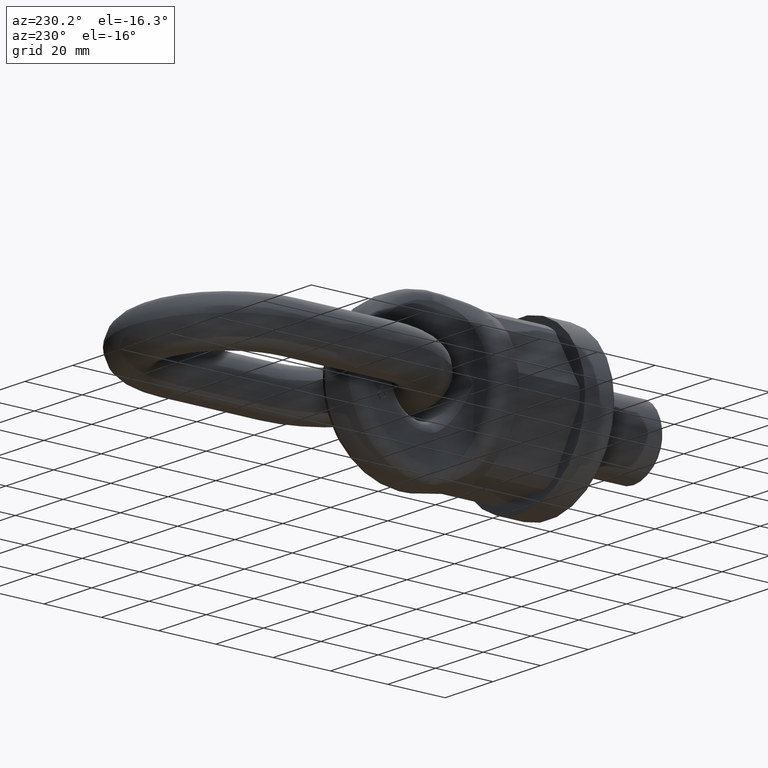
[diagram: clean part render]
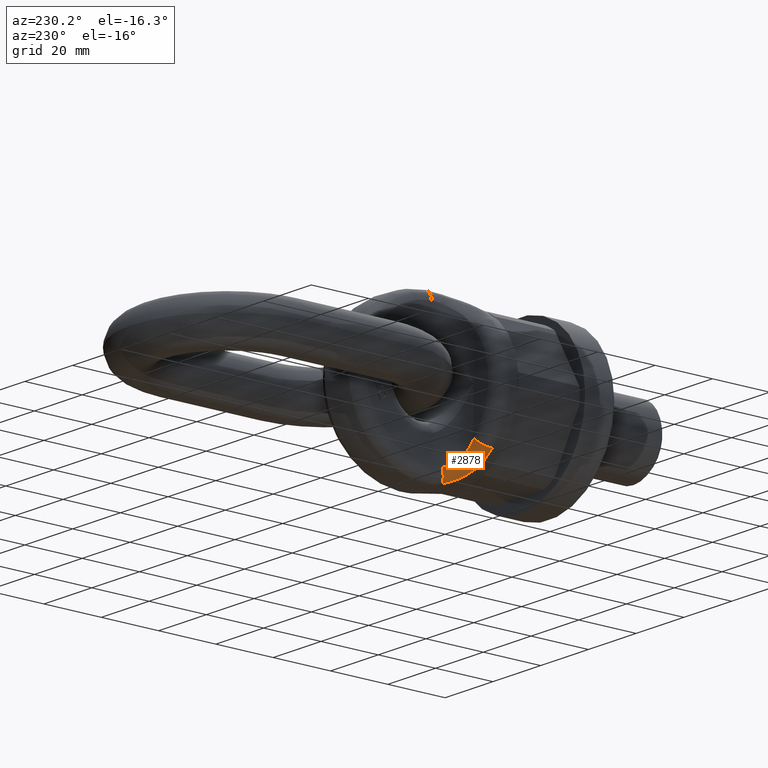
[diagram: same view with one face highlighted and labeled with its STEP entity id]
A machine part, auxiliary view. The second image highlights one B-rep face of the part: STEP entity #2878.
In plain terms, the highlighted face is a freeform B-spline surface patch.
Its self-contained STEP definition (entity closure, byte-faithful):
#219=(
BOUNDED_SURFACE()
B_SPLINE_SURFACE(3,2,((#9590,#9591,#9592),(#9593,#9594,#9595),(#9596,#9597,
#9598),(#9599,#9600,#9601),(#9602,#9603,#9604),(#9605,#9606,#9607)),
 .UNSPECIFIED.,.F.,.F.,.F.)
B_SPLINE_SURFACE_WITH_KNOTS((4,2,4),(3,3),(0.,0.5,1.),(0.,1.),
 .UNSPECIFIED.)
GEOMETRIC_REPRESENTATION_ITEM()
RATIONAL_B_SPLINE_SURFACE(((1.,0.753233426508289,1.),(1.,0.749856148031079,
1.),(1.,0.749778402047912,1.),(1.,0.718998809022,1.),(1.,0.688199605206974,
1.),(1.,0.644133810141845,1.)))
REPRESENTATION_ITEM('')
SURFACE()
);
#357=B_SPLINE_CURVE_WITH_KNOTS('',3,(#7016,#7017,#7018,#7019,#7020,#7021),
 .UNSPECIFIED.,.F.,.F.,(4,2,4),(0.,0.5,1.),.UNSPECIFIED.);
#542=B_SPLINE_CURVE_WITH_KNOTS('',3,(#8546,#8547,#8548,#8549,#8550,#8551),
 .UNSPECIFIED.,.F.,.F.,(4,2,4),(0.,0.5,1.),.UNSPECIFIED.);
#2014=FACE_OUTER_BOUND('',#3337,.T.);
#2878=ADVANCED_FACE('',(#2014),#219,.T.);
#3337=EDGE_LOOP('',(#4513,#4514,#4515,#4516));
#4513=ORIENTED_EDGE('',*,*,#5527,.T.);
#4514=ORIENTED_EDGE('',*,*,#5346,.F.);
#4515=ORIENTED_EDGE('',*,*,#5529,.F.);
#4516=ORIENTED_EDGE('',*,*,#5067,.F.);
#4654=VERTEX_POINT('',#7022);
#4655=VERTEX_POINT('',#7023);
#4839=VERTEX_POINT('',#8532);
#4840=VERTEX_POINT('',#8545);
#5067=EDGE_CURVE('',#4654,#4655,#357,.T.);
#5346=EDGE_CURVE('',#4840,#4839,#542,.T.);
#5527=EDGE_CURVE('',#4654,#4839,#5593,.T.);
#5529=EDGE_CURVE('',#4655,#4840,#5595,.T.);
#5593=CIRCLE('',#5792,3.75);
#5595=CIRCLE('',#5795,3.75);
#5792=AXIS2_PLACEMENT_3D('',#9574,#6535,#6536);
#5795=AXIS2_PLACEMENT_3D('',#9589,#6541,#6542);
#6535=DIRECTION('',(0.691825547381453,0.,-0.722064686846235));
#6536=DIRECTION('',(-0.722064686846235,0.,-0.691825547381454));
#6541=DIRECTION('',(0.374934514116953,0.894580537769602,-0.243207260516073));
#6542=DIRECTION('',(0.922272370507941,-0.386540650640606,1.85037170770859E-15));
#7016=CARTESIAN_POINT('',(-18.6682431880993,35.6118127402589,-17.8864411977637));
#7017=CARTESIAN_POINT('',(-16.6026135396763,35.6118127402589,-20.042357860388));
#7018=CARTESIAN_POINT('',(-14.2048556774492,36.0096549577191,-21.8579209643514));
#7019=CARTESIAN_POINT('',(-9.48351672167395,38.312230282026,-24.7059617112635));
#7020=CARTESIAN_POINT('',(-7.25945024028701,40.2128643500386,-25.6797626126411));
#7021=CARTESIAN_POINT('',(-5.97855748545767,42.8199600952317,-26.4311194784265));
#7022=CARTESIAN_POINT('',(-18.6682431880993,35.6118127402589,-17.8864411977637));
#7023=CARTESIAN_POINT('',(-5.97855748545769,42.8199600952318,-26.4311194784265));
#8532=CARTESIAN_POINT('',(-16.,40.,-15.3299405991591));
#8545=CARTESIAN_POINT('',(-8.62182103593642,44.9076747948751,-22.8268759131865));
#8546=CARTESIAN_POINT('',(-8.62182103593642,44.9076747948751,-22.8268759131865));
#8547=CARTESIAN_POINT('',(-9.3691551536251,43.1245619265651,-22.1148696660404));
#8548=CARTESIAN_POINT('',(-10.7230395826794,41.7774745141623,-21.1894807836347));
#8549=CARTESIAN_POINT('',(-13.5258189078003,40.225389875314,-18.6140008230382));
#8550=CARTESIAN_POINT('',(-14.8791332481664,40.,-17.0481709143851));
#8551=CARTESIAN_POINT('',(-16.,40.,-15.3299405991591));
#9574=CARTESIAN_POINT('',(-16.,36.25,-15.3299405991591));
#9589=CARTESIAN_POINT('',(-5.16329964653164,43.4581473549729,-22.8268759131865));
#9590=CARTESIAN_POINT('',(-5.97855748545768,42.8199600952318,-26.4311194784265));
#9591=CARTESIAN_POINT('',(-8.92966910136346,44.1731601595136,-26.0032011622555));
#9592=CARTESIAN_POINT('',(-8.62182103593641,44.9076747948751,-22.8268759131865));
#9593=CARTESIAN_POINT('',(-7.15147590815731,40.4326325017704,-25.7430991078228));
#9594=CARTESIAN_POINT('',(-9.83635628221911,42.4637989797805,-25.3496811052493));
#9595=CARTESIAN_POINT('',(-9.30335559597225,43.2815573523096,-22.1775587594244));
#9596=CARTESIAN_POINT('',(-9.23226405920657,38.4918600789081,-24.8342428854628));
#9597=CARTESIAN_POINT('',(-11.4228943086771,41.0471219585809,-24.4255058750258));
#9598=CARTESIAN_POINT('',(-10.5125980752097,41.9608832935445,-21.3503226406741));
#9599=CARTESIAN_POINT('',(-13.9802249913453,36.0675302621977,-22.0144707970688));
#9600=CARTESIAN_POINT('',(-15.2003515743748,39.5398917178254,-21.8871300477611));
#9601=CARTESIAN_POINT('',(-13.2704118262255,40.3102757604728,-18.8761075315523));
#9602=CARTESIAN_POINT('',(-16.5167437127664,35.611812736426,-20.1319809875622));
#9603=CARTESIAN_POINT('',(-17.4017719241099,39.5277628676976,-20.1858198101777));
#9604=CARTESIAN_POINT('',(-14.7422211493438,40.,-17.2580500246272));
#9605=CARTESIAN_POINT('',(-18.6682431880993,35.6118127402589,-17.8864411977637));
#9606=CARTESIAN_POINT('',(-19.2154608231792,40.,-18.4107420628005));
#9607=CARTESIAN_POINT('',(-16.,40.,-15.3299405991591));